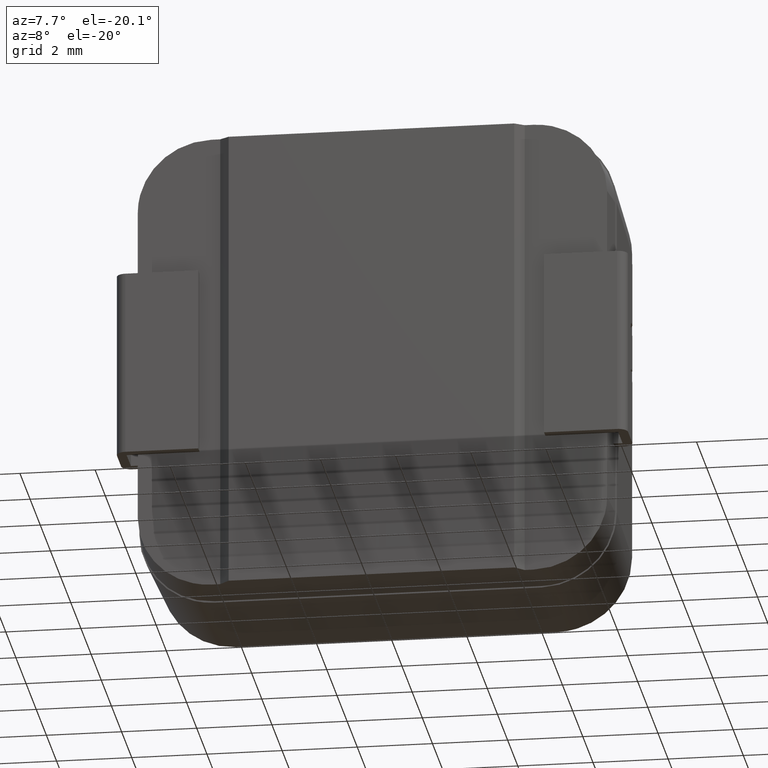
[diagram: clean part render]
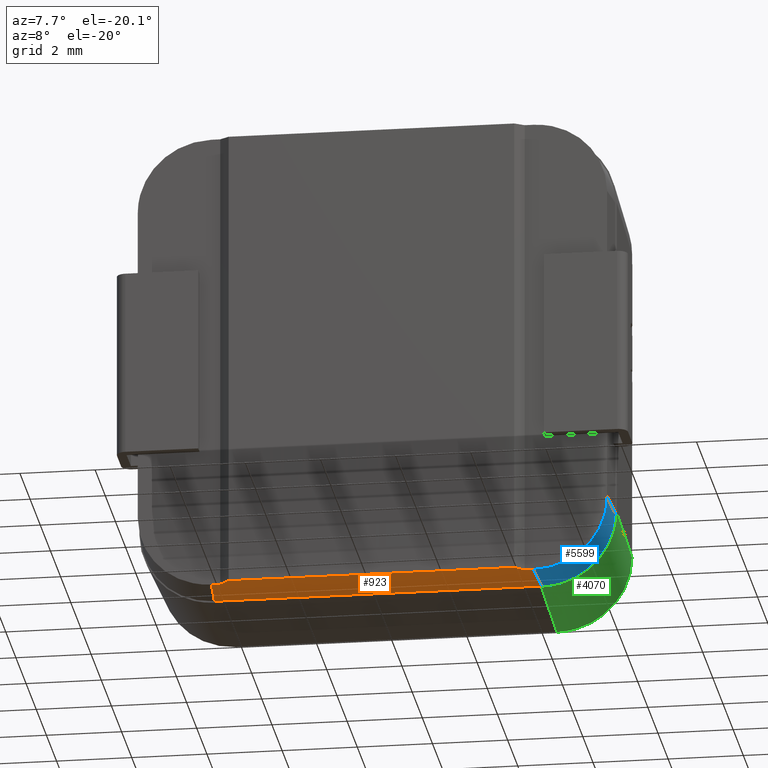
[diagram: same view with three faces highlighted in distinct colors, each labeled with its STEP entity id]
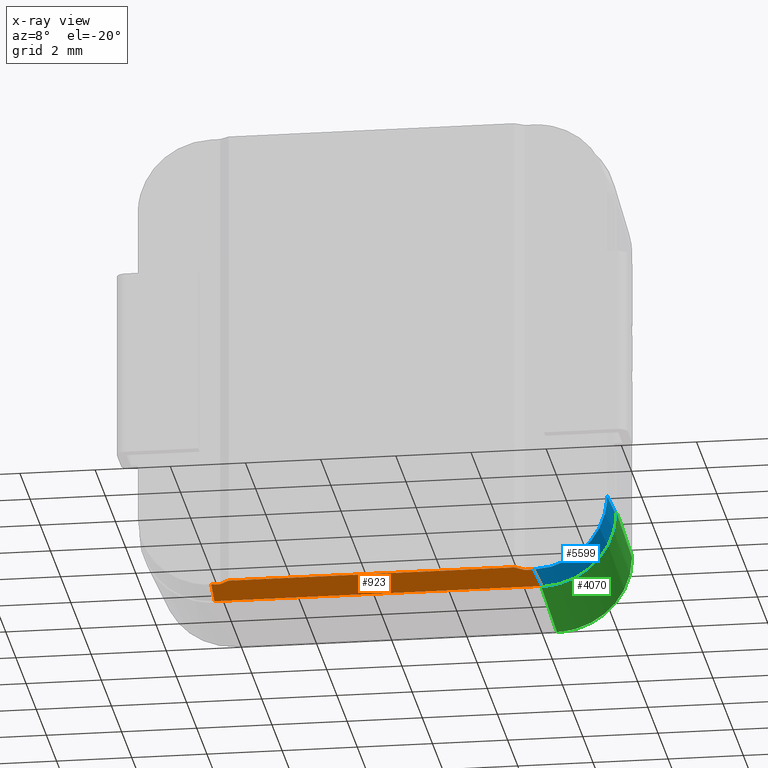
[diagram: x-ray of the same camera — body ghosted, the three highlighted faces saturated]
A machine part, auxiliary view with three faces highlighted in distinct colors.
The next image is the same camera in x-ray (body ghosted, the three faces saturated) — at least one of them is partly hidden behind the body in this view.
Their STEP definitions:

[orange] entity #923 — the highlighted planar face has unit normal (-0, -0.06, -0.9982).
#44 = EDGE_CURVE ( 'NONE', #1166, #2714, #3682, .T. ) ;
#322 = CARTESIAN_POINT ( 'NONE',  ( -4.315276410966078835, 0.6635975083169501909, -6.271744845731352491 ) ) ;
#358 = DIRECTION ( 'NONE',  ( 0.0000000000000000000, 0.9981981810026930857, -0.06000326193562087462 ) ) ;
#478 = CARTESIAN_POINT ( 'NONE',  ( 4.050000000000000711, 0.2000000000000006495, -6.243877270680977531 ) ) ;
#550 = DIRECTION ( 'NONE',  ( 1.000000000000000000, -1.532024808946907635E-16, -2.657073152296442359E-16 ) ) ;
#691 = CARTESIAN_POINT ( 'NONE',  ( 6.309999999999996056, 1.300000000000000044, -6.310000000000001386 ) ) ;
#701 = FACE_OUTER_BOUND ( 'NONE', #1307, .T. ) ;
#709 = ORIENTED_EDGE ( 'NONE', *, *, #1516, .T. ) ;
#779 = CARTESIAN_POINT ( 'NONE',  ( -4.287408835915695882, 0.1999999999999997613, -6.243877270680974867 ) ) ;
#892 = VECTOR ( 'NONE', #4804, 999.9999999999998863 ) ;
#923 = ADVANCED_FACE ( 'NONE', ( #701 ), #3063, .T. ) ;
#1056 = LINE ( 'NONE', #1836, #2808 ) ;
#1083 = DIRECTION ( 'NONE',  ( 0.7803188364368910390, -0.6242550691495121207, 0.03752495360309219402 ) ) ;
#1157 = ORIENTED_EDGE ( 'NONE', *, *, #44, .F. ) ;
#1166 = VERTEX_POINT ( 'NONE', #2475 ) ;
#1221 = ORIENTED_EDGE ( 'NONE', *, *, #3864, .F. ) ;
#1275 = EDGE_CURVE ( 'NONE', #4124, #1595, #1830, .T. ) ;
#1307 = EDGE_LOOP ( 'NONE', ( #2063, #709, #1157, #4977, #2068, #3002, #3801, #1221 ) ) ;
#1516 = EDGE_CURVE ( 'NONE', #4124, #2714, #2082, .T. ) ;
#1595 = VERTEX_POINT ( 'NONE', #1709 ) ;
#1709 = CARTESIAN_POINT ( 'NONE',  ( -4.049999999999999822, 0.2000000000000005107, -6.243877270680974867 ) ) ;
#1830 = LINE ( 'NONE', #4627, #5585 ) ;
#1836 = CARTESIAN_POINT ( 'NONE',  ( 4.360550347083473000, 1.416762573371390443, -6.317018781848754649 ) ) ;
#1961 = CARTESIAN_POINT ( 'NONE',  ( 4.287408835915696770, 0.2000000000000008160, -6.243877270680976643 ) ) ;
#1989 = EDGE_CURVE ( 'NONE', #1166, #2692, #1056, .T. ) ;
#2063 = ORIENTED_EDGE ( 'NONE', *, *, #1275, .F. ) ;
#2068 = ORIENTED_EDGE ( 'NONE', *, *, #5263, .F. ) ;
#2082 = LINE ( 'NONE', #322, #892 ) ;
#2184 = VECTOR ( 'NONE', #3859, 1000.000000000000000 ) ;
#2203 = CARTESIAN_POINT ( 'NONE',  ( 6.309999999999996056, 1.300000000000000044, -6.310000000000001386 ) ) ;
#2258 = EDGE_CURVE ( 'NONE', #2856, #2292, #4668, .T. ) ;
#2292 = VERTEX_POINT ( 'NONE', #3607 ) ;
#2294 = AXIS2_PLACEMENT_3D ( 'NONE', #2203, #4837, #358 ) ;
#2475 = CARTESIAN_POINT ( 'NONE',  ( 4.353531565234719736, 1.300000000000000044, -6.310000000000000497 ) ) ;
#2687 = VECTOR ( 'NONE', #3277, 1000.000000000000114 ) ;
#2692 = VERTEX_POINT ( 'NONE', #1961 ) ;
#2714 = VERTEX_POINT ( 'NONE', #3303 ) ;
#2808 = VECTOR ( 'NONE', #3657, 1000.000000000000114 ) ;
#2828 = CARTESIAN_POINT ( 'NONE',  ( 6.309999999999996945, 0.2000000000000016209, -6.243877270680977531 ) ) ;
#2856 = VERTEX_POINT ( 'NONE', #2985 ) ;
#2985 = CARTESIAN_POINT ( 'NONE',  ( 3.800000000000000711, 9.307315673519885459E-16, -6.231854956259336831 ) ) ;
#3002 = ORIENTED_EDGE ( 'NONE', *, *, #3178, .F. ) ;
#3039 = LINE ( 'NONE', #2828, #5849 ) ;
#3063 = PLANE ( 'NONE',  #2294 ) ;
#3178 = EDGE_CURVE ( 'NONE', #2856, #5133, #5075, .T. ) ;
#3268 = VECTOR ( 'NONE', #4929, 1000.000000000000000 ) ;
#3277 = DIRECTION ( 'NONE',  ( 0.7803188364368908170, 0.6242550691495124537, -0.03752495360309265199 ) ) ;
#3303 = CARTESIAN_POINT ( 'NONE',  ( -4.353531565234720624, 1.300000000000000044, -6.309999999999998721 ) ) ;
#3607 = CARTESIAN_POINT ( 'NONE',  ( -3.799999999999998046, 0.0000000000000000000, -6.231854956259334166 ) ) ;
#3657 = DIRECTION ( 'NONE',  ( -0.05989553512709958061, -0.9964060666935327104, 0.05989553512709965000 ) ) ;
#3682 = LINE ( 'NONE', #691, #2184 ) ;
#3721 = CARTESIAN_POINT ( 'NONE',  ( 1.720412004056651067, -4.416329603245314317, -5.966382440860261482 ) ) ;
#3801 = ORIENTED_EDGE ( 'NONE', *, *, #2258, .T. ) ;
#3859 = DIRECTION ( 'NONE',  ( -1.000000000000000000, 0.0000000000000000000, 2.749165572071010901E-16 ) ) ;
#3864 = EDGE_CURVE ( 'NONE', #1595, #2292, #5270, .T. ) ;
#4057 = CARTESIAN_POINT ( 'NONE',  ( -1.713240109588825766E-15, 0.0000000000000000000, -6.231854956259335054 ) ) ;
#4124 = VERTEX_POINT ( 'NONE', #779 ) ;
#4173 = CARTESIAN_POINT ( 'NONE',  ( 5.963874275550924864, 1.731099420440739944, -6.335914063897629234 ) ) ;
#4627 = CARTESIAN_POINT ( 'NONE',  ( 6.309999999999996056, 0.1999999999999981515, -6.243877270680977531 ) ) ;
#4668 = LINE ( 'NONE', #4057, #3268 ) ;
#4804 = DIRECTION ( 'NONE',  ( -0.05989553512709964306, 0.9964060666935328214, -0.05989553512709962918 ) ) ;
#4837 = DIRECTION ( 'NONE',  ( -2.744212073316511266E-16, -0.06000326193562088156, -0.9981981810026931967 ) ) ;
#4929 = DIRECTION ( 'NONE',  ( -1.000000000000000000, 0.0000000000000000000, 2.749165572071010901E-16 ) ) ;
#4977 = ORIENTED_EDGE ( 'NONE', *, *, #1989, .T. ) ;
#4995 = VECTOR ( 'NONE', #1083, 1000.000000000000114 ) ;
#5075 = LINE ( 'NONE', #4173, #2687 ) ;
#5133 = VERTEX_POINT ( 'NONE', #478 ) ;
#5263 = EDGE_CURVE ( 'NONE', #5133, #2692, #3039, .T. ) ;
#5270 = LINE ( 'NONE', #3721, #4995 ) ;
#5480 = DIRECTION ( 'NONE',  ( 1.000000000000000000, 3.888986053480611330E-16, -2.982938637652608160E-16 ) ) ;
#5585 = VECTOR ( 'NONE', #550, 1000.000000000000000 ) ;
#5849 = VECTOR ( 'NONE', #5480, 1000.000000000000000 ) ;

[blue] entity #5599 — the highlighted cylindrical surface (partial cylindrical patch) has radius 1.96 mm, axis along (0.0599, 0.9964, -0.0599).
#71 =( BOUNDED_CURVE ( )  B_SPLINE_CURVE ( 3, ( #4900, #438, #2642, #420 ),
 .UNSPECIFIED., .F., .F. ) 
 B_SPLINE_CURVE_WITH_KNOTS ( ( 4, 4 ),
 ( 5.499587343392883909, 7.066783270966282338 ),
 .UNSPECIFIED. ) 
 CURVE ( )  GEOMETRIC_REPRESENTATION_ITEM ( )  RATIONAL_B_SPLINE_CURVE ( ( 1.000000000000000000, 0.8055857120563386653, 0.8055857120563386653, 1.000000000000000000 ) ) 
 REPRESENTATION_ITEM ( '' )  );
#246 = EDGE_LOOP ( 'NONE', ( #4777, #4687, #4542, #4054 ) ) ;
#420 = CARTESIAN_POINT ( 'NONE',  ( 6.243877270680973979, 0.2000000000000016209, -4.287408835915700323 ) ) ;
#438 = CARTESIAN_POINT ( 'NONE',  ( 5.434334431028235990, 0.2000000000000012879, -6.243877270680977531 ) ) ;
#823 = VERTEX_POINT ( 'NONE', #3849 ) ;
#1056 = LINE ( 'NONE', #1836, #2808 ) ;
#1166 = VERTEX_POINT ( 'NONE', #2475 ) ;
#1204 = EDGE_CURVE ( 'NONE', #823, #2397, #1694, .T. ) ;
#1417 = CARTESIAN_POINT ( 'NONE',  ( 4.353531565234719736, 1.300000000000000044, -6.310000000000000497 ) ) ;
#1623 = EDGE_CURVE ( 'NONE', #2692, #823, #71, .T. ) ;
#1694 = LINE ( 'NONE', #4174, #3251 ) ;
#1785 =( BOUNDED_CURVE ( )  B_SPLINE_CURVE ( 3, ( #5115, #5502, #3228, #1417 ),
 .UNSPECIFIED., .F., .F. ) 
 B_SPLINE_CURVE_WITH_KNOTS ( ( 4, 4 ),
 ( 5.499587343392887462, 7.066783270966285890 ),
 .UNSPECIFIED. ) 
 CURVE ( )  GEOMETRIC_REPRESENTATION_ITEM ( )  RATIONAL_B_SPLINE_CURVE ( ( 1.000000000000000000, 0.8055857120563386653, 0.8055857120563386653, 1.000000000000000000 ) ) 
 REPRESENTATION_ITEM ( '' )  );
#1836 = CARTESIAN_POINT ( 'NONE',  ( 4.360550347083473000, 1.416762573371390443, -6.317018781848754649 ) ) ;
#1961 = CARTESIAN_POINT ( 'NONE',  ( 4.287408835915696770, 0.2000000000000008160, -6.243877270680976643 ) ) ;
#1965 = DIRECTION ( 'NONE',  ( 0.05989553512709958061, 0.9964060666935327104, -0.05989553512709964306 ) ) ;
#1989 = EDGE_CURVE ( 'NONE', #1166, #2692, #1056, .T. ) ;
#2030 = CARTESIAN_POINT ( 'NONE',  ( 4.315276410966073506, 0.7812039017107673677, -4.315276410966075282 ) ) ;
#2397 = VERTEX_POINT ( 'NONE', #4996 ) ;
#2475 = CARTESIAN_POINT ( 'NONE',  ( 4.353531565234719736, 1.300000000000000044, -6.310000000000000497 ) ) ;
#2642 = CARTESIAN_POINT ( 'NONE',  ( 6.243877270680974867, 0.2000000000000016209, -5.434334431028240431 ) ) ;
#2692 = VERTEX_POINT ( 'NONE', #1961 ) ;
#2808 = VECTOR ( 'NONE', #3657, 1000.000000000000114 ) ;
#3030 = AXIS2_PLACEMENT_3D ( 'NONE', #2030, #4853, #3961 ) ;
#3228 = CARTESIAN_POINT ( 'NONE',  ( 5.500457160347258956, 1.299999999999999822, -6.310000000000000497 ) ) ;
#3251 = VECTOR ( 'NONE', #1965, 1000.000000000000114 ) ;
#3657 = DIRECTION ( 'NONE',  ( -0.05989553512709958061, -0.9964060666935327104, 0.05989553512709965000 ) ) ;
#3834 = EDGE_CURVE ( 'NONE', #2397, #1166, #1785, .T. ) ;
#3849 = CARTESIAN_POINT ( 'NONE',  ( 6.243877270680973979, 0.2000000000000016209, -4.287408835915700323 ) ) ;
#3961 = DIRECTION ( 'NONE',  ( 0.0000000000000000000, 0.06000326193562091626, 0.9981981810026931967 ) ) ;
#4054 = ORIENTED_EDGE ( 'NONE', *, *, #1204, .F. ) ;
#4174 = CARTESIAN_POINT ( 'NONE',  ( 6.271744845731351603, 0.6635975083169505240, -4.315276410966078835 ) ) ;
#4542 = ORIENTED_EDGE ( 'NONE', *, *, #3834, .F. ) ;
#4687 = ORIENTED_EDGE ( 'NONE', *, *, #1989, .F. ) ;
#4777 = ORIENTED_EDGE ( 'NONE', *, *, #1623, .F. ) ;
#4853 = DIRECTION ( 'NONE',  ( 0.05989553512709958755, 0.9964060666935328214, -0.05989553512709965694 ) ) ;
#4900 = CARTESIAN_POINT ( 'NONE',  ( 4.287408835915696770, 0.2000000000000008160, -6.243877270680976643 ) ) ;
#4996 = CARTESIAN_POINT ( 'NONE',  ( 6.309999999999997833, 1.300000000000000044, -4.353531565234724177 ) ) ;
#5115 = CARTESIAN_POINT ( 'NONE',  ( 6.309999999999997833, 1.300000000000000044, -4.353531565234724177 ) ) ;
#5339 = FACE_OUTER_BOUND ( 'NONE', #246, .T. ) ;
#5502 = CARTESIAN_POINT ( 'NONE',  ( 6.309999999999996056, 1.299999999999999822, -5.500457160347265173 ) ) ;
#5599 = ADVANCED_FACE ( 'NONE', ( #5339 ), #5704, .T. ) ;
#5704 = CYLINDRICAL_SURFACE ( 'NONE', #3030, 1.960000000000000187 ) ;

[green] entity #4070 — the highlighted cylindrical surface (partial cylindrical patch) has radius 2 mm, axis along (0.0246, -0.9994, -0.0246).
#353 = VERTEX_POINT ( 'NONE', #781 ) ;
#485 = CYLINDRICAL_SURFACE ( 'NONE', #3022, 1.999999999999999778 ) ;
#781 = CARTESIAN_POINT ( 'NONE',  ( 6.349999999999997868, 1.300000000000000044, -4.350605579329286599 ) ) ;
#802 = CARTESIAN_POINT ( 'NONE',  ( 6.258927787436864953, 5.000000000000000000, -4.259533366766154572 ) ) ;
#806 = VERTEX_POINT ( 'NONE', #3434 ) ;
#866 = ORIENTED_EDGE ( 'NONE', *, *, #5741, .F. ) ;
#1024 = CARTESIAN_POINT ( 'NONE',  ( 4.259533366766143914, 5.000000000000000000, -6.258927787436867618 ) ) ;
#1121 = VECTOR ( 'NONE', #3604, 999.9999999999998863 ) ;
#1169 = CARTESIAN_POINT ( 'NONE',  ( 6.258927787436865842, 5.000000000000001776, -5.430898325056571885 ) ) ;
#1239 = VERTEX_POINT ( 'NONE', #1024 ) ;
#1353 = DIRECTION ( 'NONE',  ( 0.02459921247229894178, -0.9993946955490036199, -0.02459921247229896260 ) ) ;
#1596 = CARTESIAN_POINT ( 'NONE',  ( 5.430898325056563003, 5.000000000000001776, -6.258927787436871171 ) ) ;
#1698 = CARTESIAN_POINT ( 'NONE',  ( 6.349999999999996092, 1.300000000000000266, -5.521970537619704800 ) ) ;
#1706 = DIRECTION ( 'NONE',  ( 0.0000000000000000000, 0.02460665860498179383, -0.9996972103353585215 ) ) ;
#1714 = CARTESIAN_POINT ( 'NONE',  ( 6.351209876059589199, 1.250846242838508982, -4.351815455388877041 ) ) ;
#2023 = CARTESIAN_POINT ( 'NONE',  ( 4.344130415459803274, 1.513853820864175637, -4.344130415459807715 ) ) ;
#2146 = CARTESIAN_POINT ( 'NONE',  ( 4.350605579329280381, 1.300000000000000044, -6.350000000000000533 ) ) ;
#2207 = EDGE_CURVE ( 'NONE', #806, #353, #4543, .T. ) ;
#2301 = LINE ( 'NONE', #1714, #1121 ) ;
#2331 =( BOUNDED_CURVE ( )  B_SPLINE_CURVE ( 3, ( #4293, #1169, #1596, #3433 ),
 .UNSPECIFIED., .F., .F. ) 
 B_SPLINE_CURVE_WITH_KNOTS ( ( 4, 4 ),
 ( 5.498089887624487915, 7.068280726734686326 ),
 .UNSPECIFIED. ) 
 CURVE ( )  GEOMETRIC_REPRESENTATION_ITEM ( )  RATIONAL_B_SPLINE_CURVE ( ( 1.000000000000000000, 0.8048805473350941764, 0.8048805473350941764, 1.000000000000000000 ) ) 
 REPRESENTATION_ITEM ( '' )  );
#3004 = EDGE_CURVE ( 'NONE', #1239, #806, #3756, .T. ) ;
#3022 = AXIS2_PLACEMENT_3D ( 'NONE', #2023, #3411, #1706 ) ;
#3411 = DIRECTION ( 'NONE',  ( 0.02459921247229893831, -0.9993946955490036199, -0.02459921247229896260 ) ) ;
#3433 = CARTESIAN_POINT ( 'NONE',  ( 4.259533366766143914, 5.000000000000000000, -6.258927787436867618 ) ) ;
#3434 = CARTESIAN_POINT ( 'NONE',  ( 4.350605579329280381, 1.300000000000000044, -6.350000000000000533 ) ) ;
#3558 = CARTESIAN_POINT ( 'NONE',  ( 5.521970537619695918, 1.300000000000000266, -6.350000000000001421 ) ) ;
#3604 = DIRECTION ( 'NONE',  ( -0.02459921247229893831, 0.9993946955490036199, 0.02459921247229896607 ) ) ;
#3632 = EDGE_CURVE ( 'NONE', #353, #4247, #2301, .T. ) ;
#3676 = ORIENTED_EDGE ( 'NONE', *, *, #3004, .F. ) ;
#3756 = LINE ( 'NONE', #4537, #4585 ) ;
#4070 = ADVANCED_FACE ( 'NONE', ( #5749 ), #485, .T. ) ;
#4247 = VERTEX_POINT ( 'NONE', #802 ) ;
#4293 = CARTESIAN_POINT ( 'NONE',  ( 6.258927787436864953, 5.000000000000000000, -4.259533366766154572 ) ) ;
#4443 = CARTESIAN_POINT ( 'NONE',  ( 6.349999999999997868, 1.300000000000000044, -4.350605579329286599 ) ) ;
#4537 = CARTESIAN_POINT ( 'NONE',  ( 4.344130415459804162, 1.563067138074139439, -6.343524836130524314 ) ) ;
#4543 =( BOUNDED_CURVE ( )  B_SPLINE_CURVE ( 3, ( #2146, #3558, #1698, #4443 ),
 .UNSPECIFIED., .F., .F. ) 
 B_SPLINE_CURVE_WITH_KNOTS ( ( 4, 4 ),
 ( 5.498089887624487915, 7.068280726734684549 ),
 .UNSPECIFIED. ) 
 CURVE ( )  GEOMETRIC_REPRESENTATION_ITEM ( )  RATIONAL_B_SPLINE_CURVE ( ( 1.000000000000000000, 0.8048805473350946205, 0.8048805473350946205, 1.000000000000000000 ) ) 
 REPRESENTATION_ITEM ( '' )  );
#4585 = VECTOR ( 'NONE', #1353, 999.9999999999998863 ) ;
#5251 = EDGE_LOOP ( 'NONE', ( #866, #5526, #5416, #3676 ) ) ;
#5416 = ORIENTED_EDGE ( 'NONE', *, *, #2207, .F. ) ;
#5526 = ORIENTED_EDGE ( 'NONE', *, *, #3632, .F. ) ;
#5741 = EDGE_CURVE ( 'NONE', #4247, #1239, #2331, .T. ) ;
#5749 = FACE_OUTER_BOUND ( 'NONE', #5251, .T. ) ;